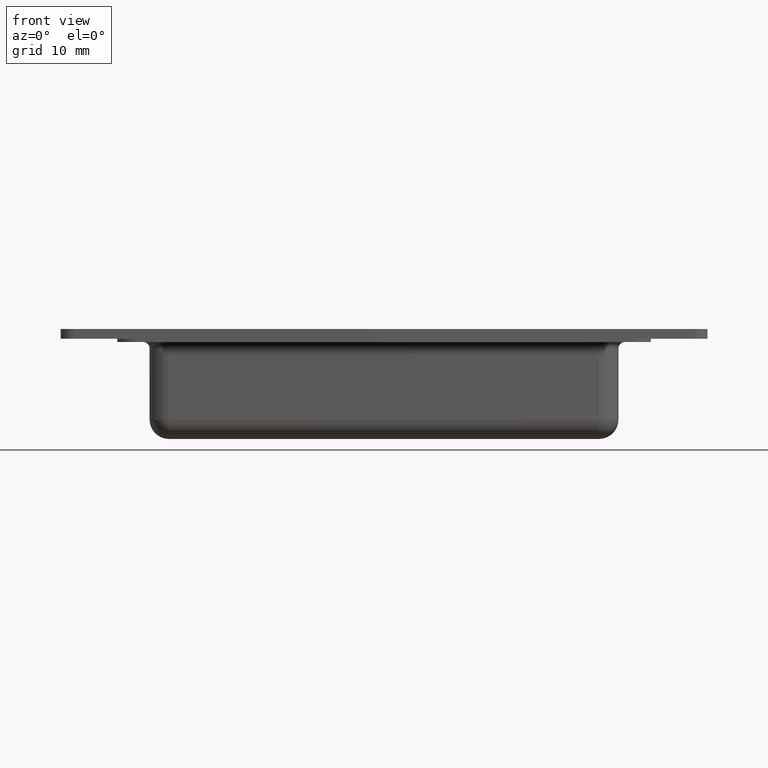
[diagram: clean part render]
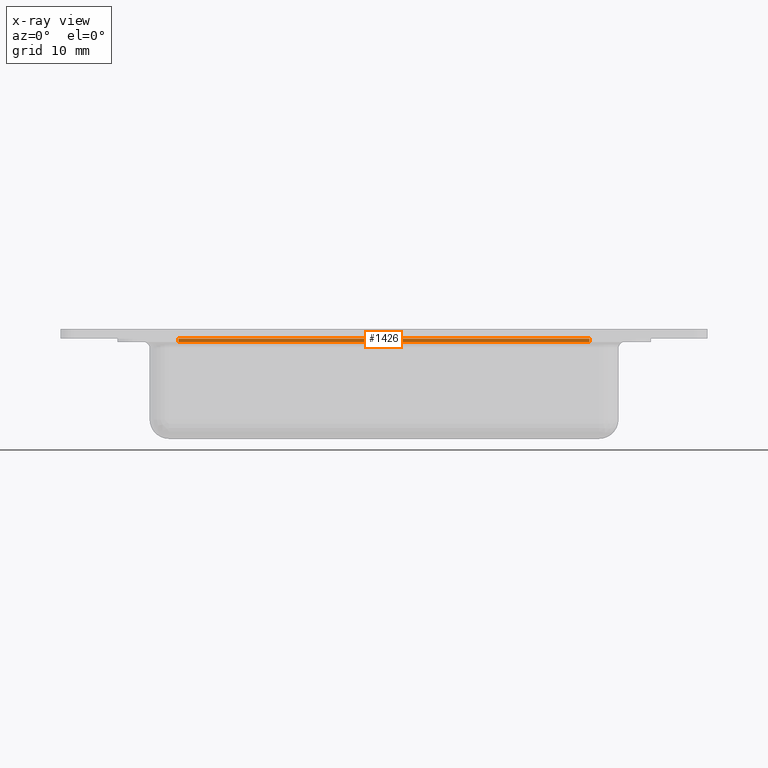
[diagram: x-ray — body ghosted, one internal face saturated and labeled with its STEP entity id]
A machine part, front view, then the same camera in x-ray: the body is ghosted and one INTERNAL B-rep face — a face not visible from any outside direction — is saturated and labeled: STEP entity #1426.
In plain terms, the highlighted planar face has unit normal (0, 1, 0).
Its self-contained STEP definition (entity closure, byte-faithful):
#106=LINE('',#2440,#214);
#109=LINE('',#2445,#217);
#119=LINE('',#2491,#227);
#120=LINE('',#2493,#228);
#214=VECTOR('',#1722,63.5);
#217=VECTOR('',#1727,0.5);
#227=VECTOR('',#1771,0.5);
#228=VECTOR('',#1774,63.5);
#320=PLANE('',#1537);
#354=FACE_OUTER_BOUND('',#453,.T.);
#453=EDGE_LOOP('',(#1053,#1054,#1055,#1056));
#669=VERTEX_POINT('',#2437);
#670=VERTEX_POINT('',#2439);
#671=VERTEX_POINT('',#2443);
#690=VERTEX_POINT('',#2489);
#801=EDGE_CURVE('',#669,#670,#106,.T.);
#804=EDGE_CURVE('',#671,#669,#109,.T.);
#828=EDGE_CURVE('',#690,#670,#119,.T.);
#829=EDGE_CURVE('',#690,#671,#120,.T.);
#1053=ORIENTED_EDGE('',*,*,#829,.F.);
#1054=ORIENTED_EDGE('',*,*,#828,.T.);
#1055=ORIENTED_EDGE('',*,*,#801,.F.);
#1056=ORIENTED_EDGE('',*,*,#804,.F.);
#1426=ADVANCED_FACE('',(#354),#320,.T.);
#1537=AXIS2_PLACEMENT_3D('',#2492,#1772,#1773);
#1722=DIRECTION('',(1.,-3.49676543189026E-17,0.));
#1727=DIRECTION('',(0.,0.,-1.));
#1771=DIRECTION('',(0.,0.,-1.));
#1772=DIRECTION('center_axis',(3.49676543189026E-17,1.,0.));
#1773=DIRECTION('ref_axis',(1.,0.,0.));
#1774=DIRECTION('',(-1.,3.49676543189026E-17,0.));
#2437=CARTESIAN_POINT('',(-31.75,8.,-0.5));
#2439=CARTESIAN_POINT('',(31.75,7.99999999999999,-0.5));
#2440=CARTESIAN_POINT('',(-31.75,8.,-0.5));
#2443=CARTESIAN_POINT('',(-31.75,8.,0.));
#2445=CARTESIAN_POINT('',(-31.75,8.,0.));
#2489=CARTESIAN_POINT('',(31.75,7.99999999999999,0.));
#2491=CARTESIAN_POINT('',(31.75,7.99999999999999,0.));
#2492=CARTESIAN_POINT('Origin',(-31.75,8.,0.));
#2493=CARTESIAN_POINT('',(-15.875,8.,0.));